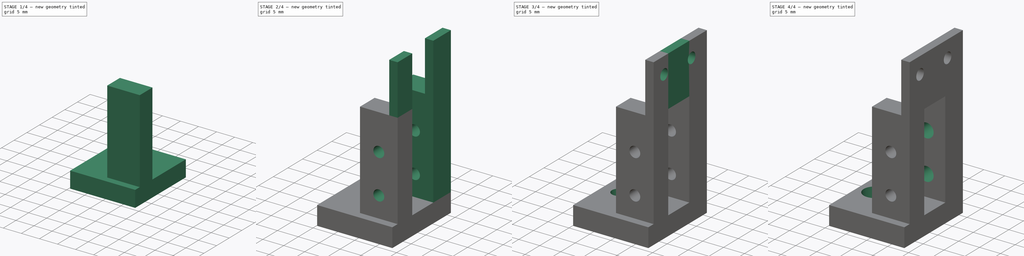
[diagram: build sequence overview — one tinted view per stage of 4, left to right]
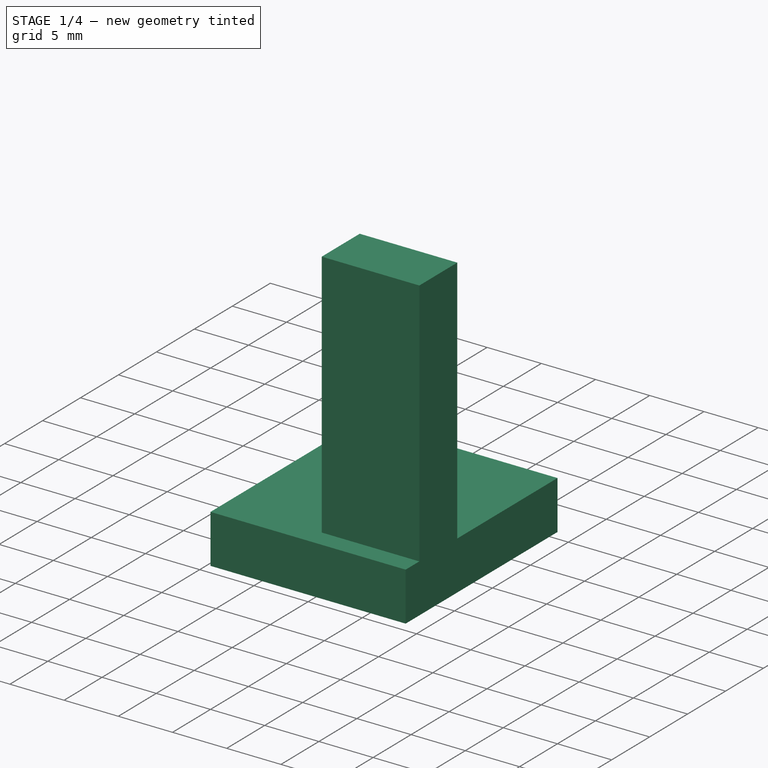
[diagram: stage 1 of 4 — iso view after this stage's code; geometry added in this stage tinted green]
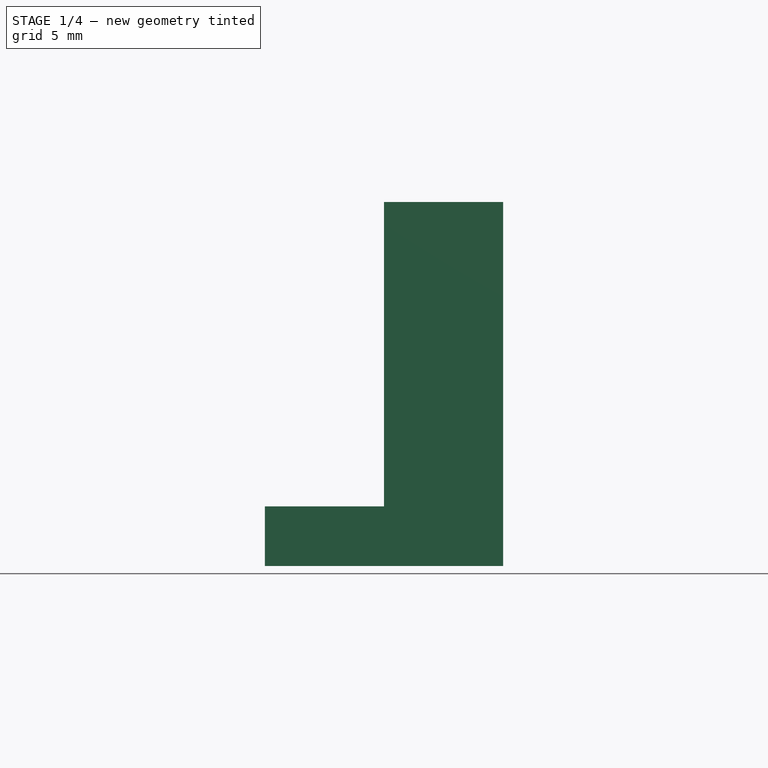
[diagram: stage 1 of 4 — front view after this stage's code; geometry added in this stage tinted green]
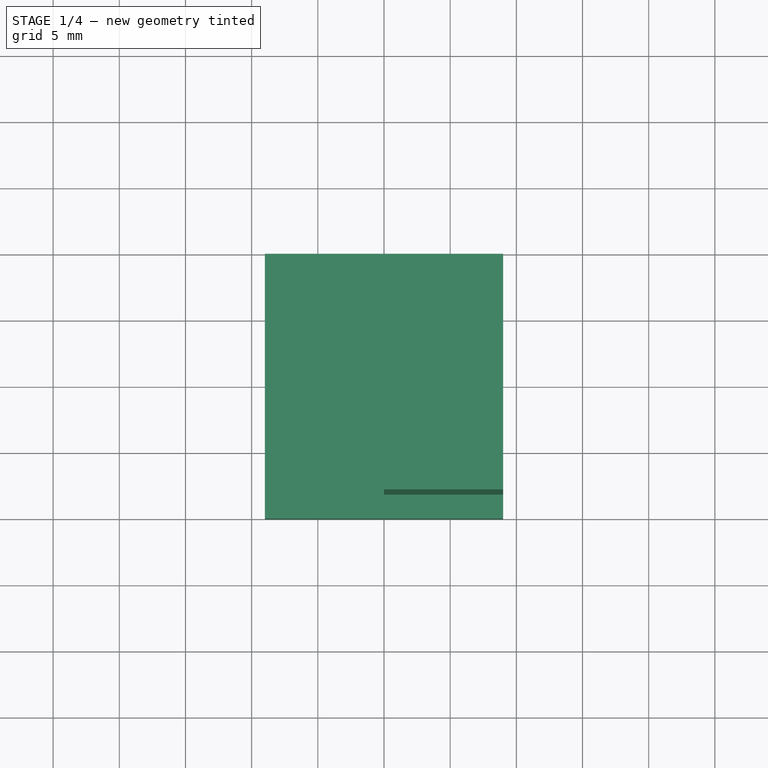
[diagram: stage 1 of 4 — top view after this stage's code; geometry added in this stage tinted green]
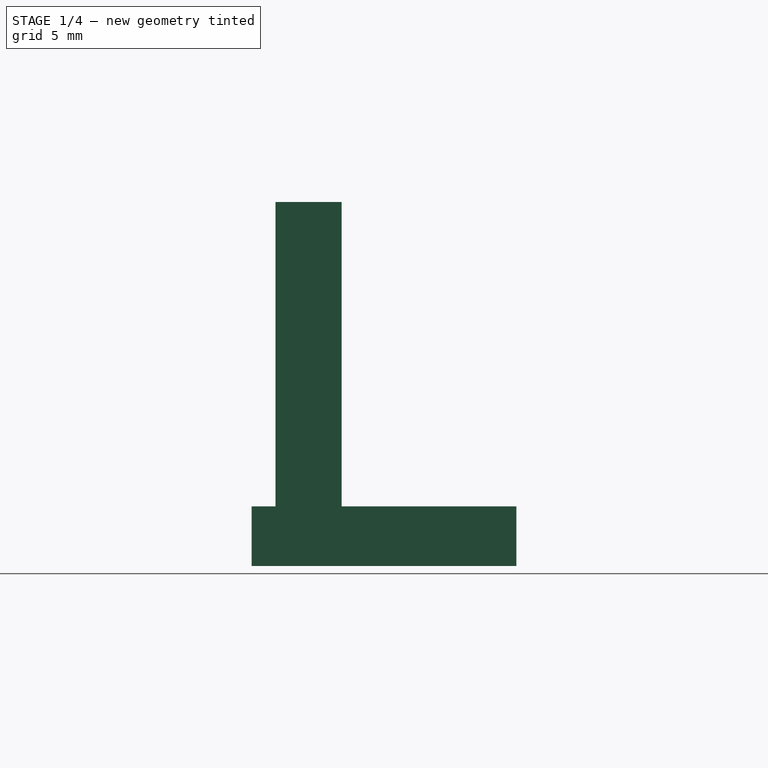
[diagram: stage 1 of 4 — right view after this stage's code; geometry added in this stage tinted green]
FCSTD DOCUMENT  (FreeCAD 0.18.4R)
Label: end_course_actuator_2
License: All rights reserved
LicenseURL: http://en.wikipedia.org/wiki/All_rights_reserved
objects: Sketcher::SketchObject×11, PartDesign::Pad×5, PartDesign::Pocket×5, PartDesign::Body×1
note: 32 computed .brp shape members not serialized (recipe doc carries the construction recipe); baked Part::Feature solids carry a one-line shape summary decoded from their .brp

FEATURE [Sketcher::SketchObject] Sketch
  MapMode = 5
  Support = -> [XY_Plane]
  sketch-geometry (4):
    g0: LineSegment StartX=-9 StartY=10 StartZ=0 EndX=9 EndY=10 EndZ=0
    g1: LineSegment StartX=9 StartY=10 StartZ=0 EndX=9 EndY=-10 EndZ=0
    g2: LineSegment StartX=9 StartY=-10 StartZ=0 EndX=-9 EndY=-10 EndZ=0
    g3: LineSegment StartX=-9 StartY=-10 StartZ=0 EndX=-9 EndY=10 EndZ=0
  constraints (10):
    c: Coincident(g0,g1)
    c: Coincident(g1,g2)
    c: Coincident(g2,g3)
    c: Coincident(g3,g0)
    c: Horizontal(g2)
    c: Vertical(g1)
    c: Symmetric(g0,g2,g-1)
    c: Symmetric(g0,g0,g-2)
    c: DistanceY(g3,g3) = 20
    c: DistanceX(g-2,g0) = -9
FEATURE [PartDesign::Pad] Pad
  Length = 4.5
  Length2 = 100
  Profile = -> Sketch
  Type = 0
FEATURE [Sketcher::SketchObject] Sketch001
  ExternalGeometry = -> [Pad]
  MapMode = 5
  Placement = pos=(0,0,4.5) rot=(0,0,1;0rad)
  Support = -> [Pad]
  sketch-geometry (4):
    g0: LineSegment StartX=0 StartY=-3.2 StartZ=0 EndX=9 EndY=-3.2 EndZ=0
    g1: LineSegment StartX=9 StartY=-3.2 StartZ=0 EndX=9 EndY=-8.2 EndZ=0
    g2: LineSegment StartX=9 StartY=-8.2 StartZ=0 EndX=0 EndY=-8.2 EndZ=0
    g3: LineSegment StartX=0 StartY=-8.2 StartZ=0 EndX=0 EndY=-3.2 EndZ=0
  constraints (12):
    c: Coincident(g0,g1)
    c: Coincident(g1,g2)
    c: Coincident(g2,g3)
    c: Coincident(g3,g0)
    c: Horizontal(g0)
    c: Horizontal(g2)
    c: Vertical(g1)
    c: Vertical(g3)
    c: PointOnObject(g0,g-2)
    c: PointOnObject(g0,g-3)
    c: Distance(g0,g-5) = 6.8
    c: Distance(g1,g0) = 5
FEATURE [PartDesign::Pad] Pad001
  BaseFeature = -> Pad
  Length = 23
  Length2 = 100
  Profile = -> Sketch001
  Type = 0
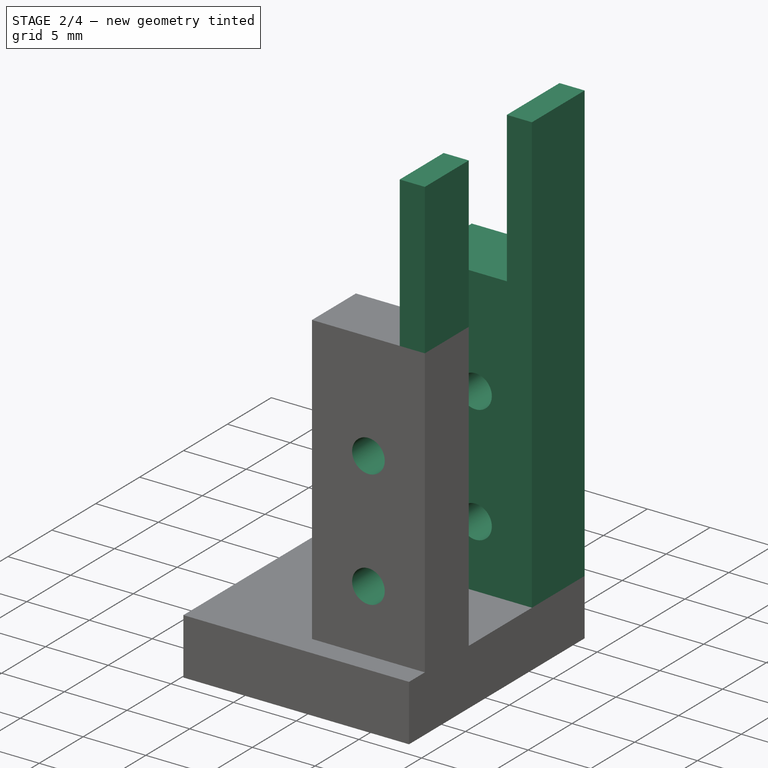
[diagram: stage 2 of 4 — iso view after this stage's code; geometry added in this stage tinted green]
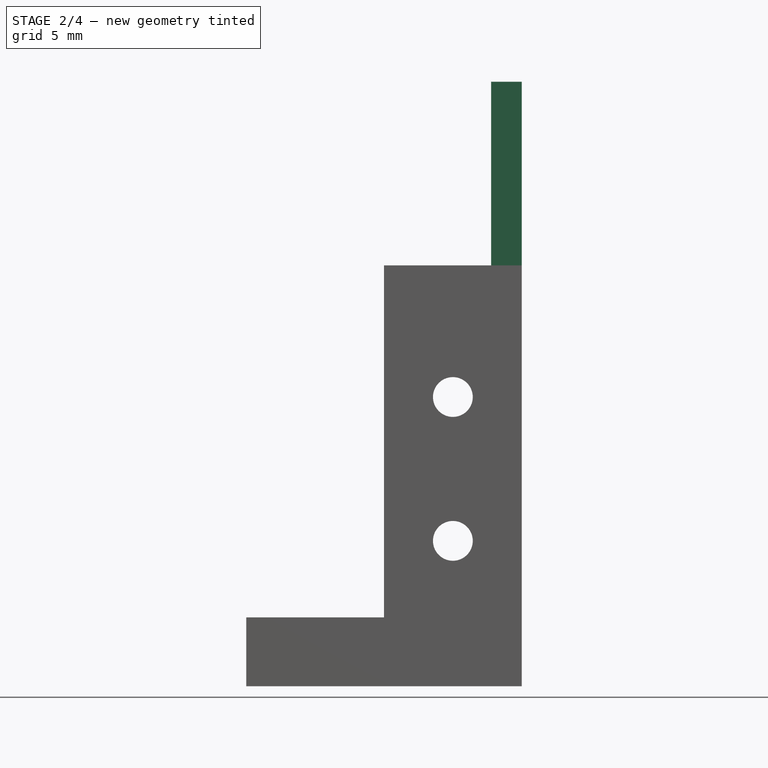
[diagram: stage 2 of 4 — front view after this stage's code; geometry added in this stage tinted green]
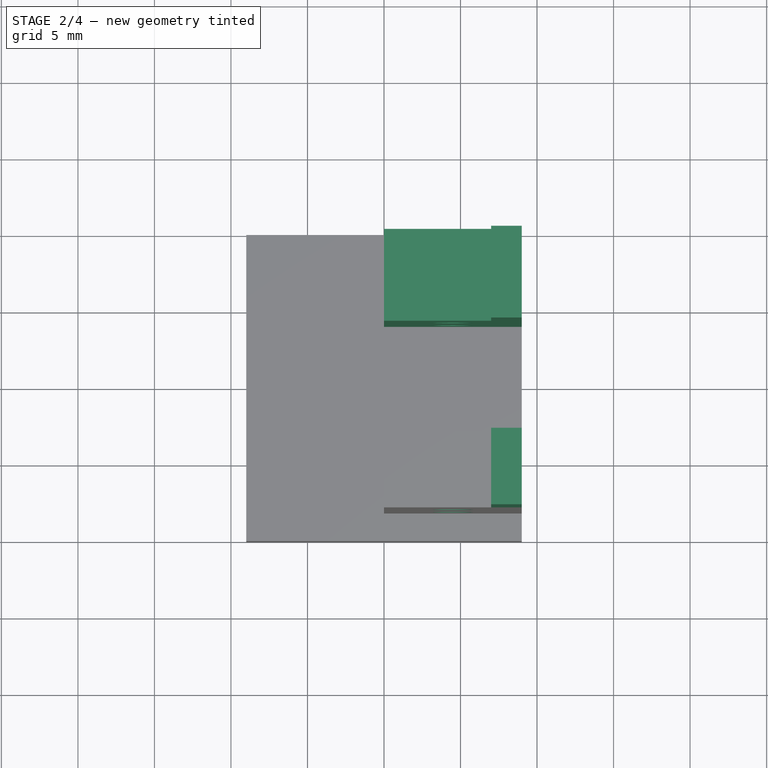
[diagram: stage 2 of 4 — top view after this stage's code; geometry added in this stage tinted green]
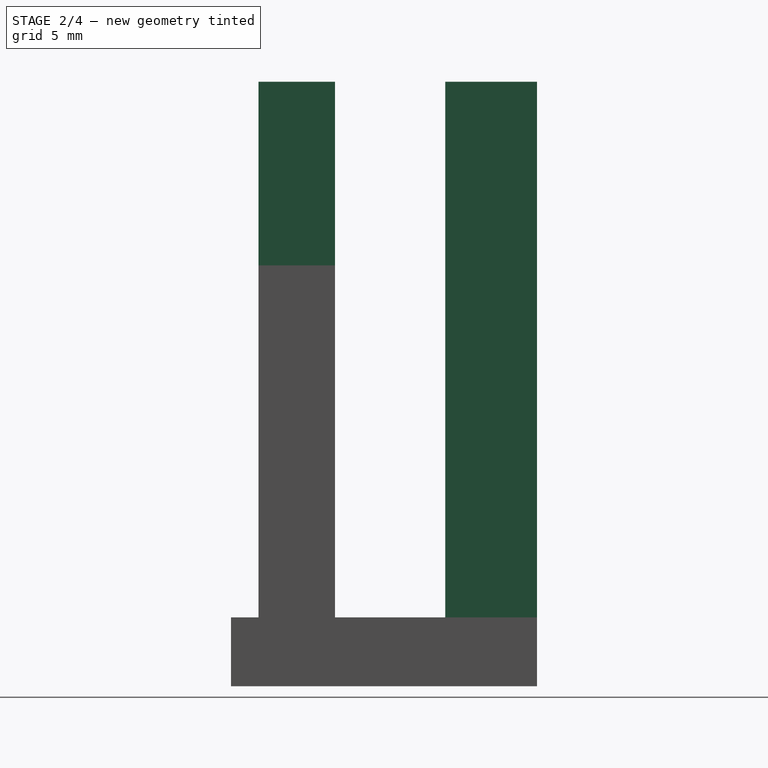
[diagram: stage 2 of 4 — right view after this stage's code; geometry added in this stage tinted green]
FEATURE [Sketcher::SketchObject] Sketch002
  ExternalGeometry = -> [Pad001]
  MapMode = 5
  Placement = pos=(0,0,4.5) rot=(0,0,1;0rad)
  Support = -> [Pad001]
  sketch-geometry (4):
    g0: LineSegment StartX=0 StartY=10 StartZ=0 EndX=9 EndY=10 EndZ=0
    g1: LineSegment StartX=9 StartY=10 StartZ=0 EndX=9 EndY=4 EndZ=0
    g2: LineSegment StartX=9 StartY=4 StartZ=0 EndX=0 EndY=4 EndZ=0
    g3: LineSegment StartX=0 StartY=4 StartZ=0 EndX=0 EndY=10 EndZ=0
  constraints (11):
    c: Coincident(g0,g1)
    c: Coincident(g1,g2)
    c: Coincident(g2,g3)
    c: Coincident(g3,g0)
    c: Horizontal(g0)
    c: Horizontal(g2)
    c: Vertical(g1)
    c: Vertical(g3)
    c: PointOnObject(g2,g-2)
    c: Distance(g1,g-4) = 6
    c: Coincident(g-4,g0)
FEATURE [PartDesign::Pad] Pad002
  BaseFeature = -> Pad001
  Length = 23
  Length2 = 100
  Profile = -> Sketch002
  Type = 0
FEATURE [Sketcher::SketchObject] Sketch004
  ExternalGeometry = -> [Pad002]
  MapMode = 5
  Placement = pos=(0,0,27.5) rot=(0,0,1;0rad)
  Support = -> [Pad002]
  sketch-geometry (8):
    g0: LineSegment StartX=7 StartY=10 StartZ=0 EndX=9 EndY=10 EndZ=0
    g1: LineSegment StartX=9 StartY=10 StartZ=0 EndX=9 EndY=4 EndZ=0
    g2: LineSegment StartX=9 StartY=4 StartZ=0 EndX=7 EndY=4 EndZ=0
    g3: LineSegment StartX=7 StartY=4 StartZ=0 EndX=7 EndY=10 EndZ=0
    g4: LineSegment StartX=7 StartY=-3.2 StartZ=0 EndX=9 EndY=-3.2 EndZ=0
    g5: LineSegment StartX=9 StartY=-3.2 StartZ=0 EndX=9 EndY=-8.2 EndZ=0
    g6: LineSegment StartX=9 StartY=-8.2 StartZ=0 EndX=7 EndY=-8.2 EndZ=0
    g7: LineSegment StartX=7 StartY=-8.2 StartZ=0 EndX=7 EndY=-3.2 EndZ=0
  constraints (20):
    c: Coincident(g0,g1)
    c: Coincident(g1,g2)
    c: Coincident(g2,g3)
    c: Coincident(g3,g0)
    c: Horizontal(g0)
    c: Horizontal(g2)
    c: Vertical(g3)
    c: Coincident(g4,g5)
    c: Coincident(g5,g6)
    c: Coincident(g6,g7)
    c: Coincident(g7,g4)
    c: Horizontal(g4)
    c: Horizontal(g6)
    c: Vertical(g7)
    c: Coincident(g4,g-6)
    c: Coincident(g0,g-4)
    c: Coincident(g5,g-6)
    c: Coincident(g1,g-3)
    c: DistanceX(g0,g0) = 2
    c: DistanceX(g4,g4) = 2
FEATURE [PartDesign::Pad] Pad003
  BaseFeature = -> Pad002
  Length = 12
  Length2 = 100
  Profile = -> Sketch004
  Type = 0
FEATURE [Sketcher::SketchObject] Sketch005
  ExternalGeometry = -> [Pad003]
  MapMode = 5
  Placement = pos=(0,-8.2,0) rot=(1,0,0;1.5708rad)
  Support = -> [Pad003]
  sketch-geometry (2):
    g0: Circle CenterX=4.5 CenterY=18.9 CenterZ=0 NormalX=0 NormalY=0 NormalZ=1 AngleXU=0 Radius=1.3
    g1: Circle CenterX=4.5 CenterY=9.5 CenterZ=0 NormalX=0 NormalY=0 NormalZ=1 AngleXU=0 Radius=1.3
  constraints (6):
    c: Distance(g0,g-4) = 4.5
    c: Vertical(g1,g0)
    c: Distance(g1,g-3) = 5
    c: Distance(g0,g-3) = 14.4
    c: Radius(g0) = 1.3
    c: Radius(g1) = 1.3
FEATURE [PartDesign::Pocket] Pocket
  BaseFeature = -> Pad003
  Length = 25
  Length2 = 100
  Profile = -> Sketch005
  Type = 0
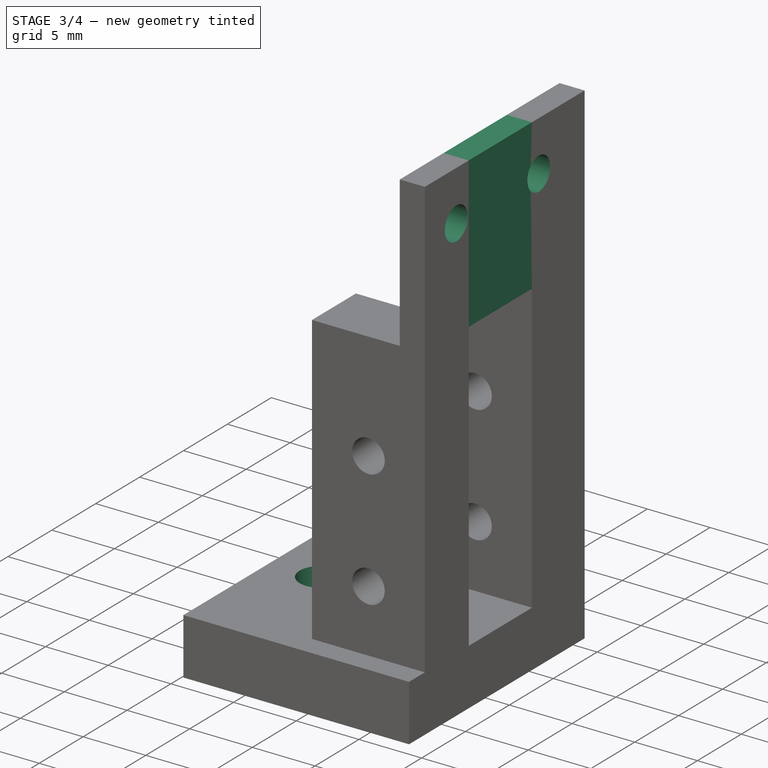
[diagram: stage 3 of 4 — iso view after this stage's code; geometry added in this stage tinted green]
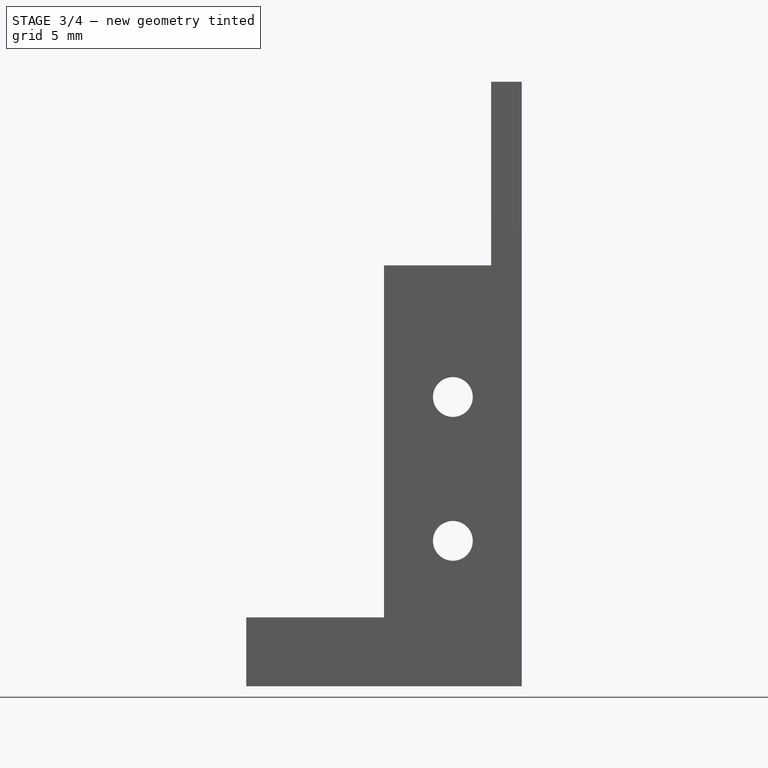
[diagram: stage 3 of 4 — front view after this stage's code; geometry added in this stage tinted green]
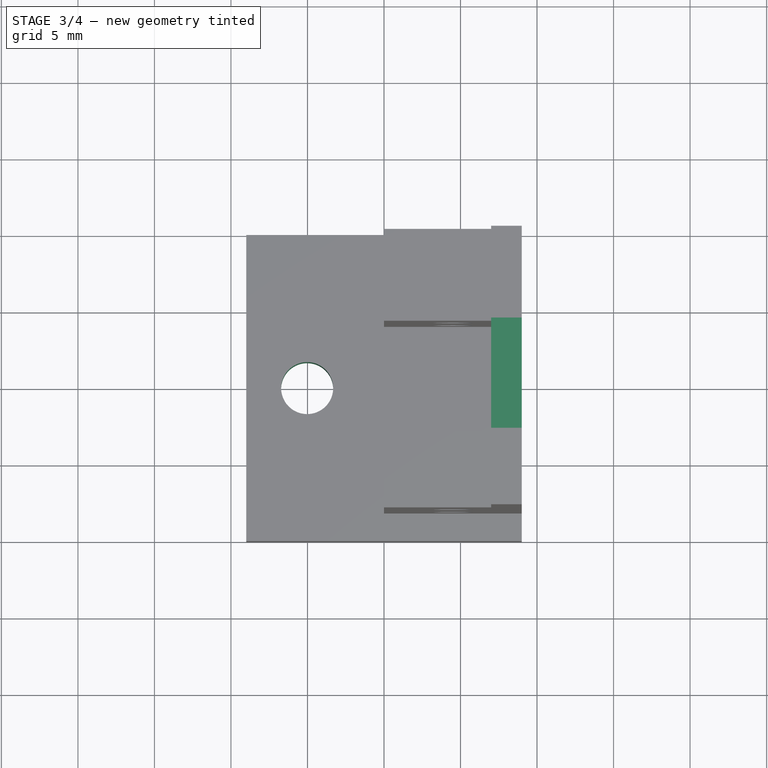
[diagram: stage 3 of 4 — top view after this stage's code; geometry added in this stage tinted green]
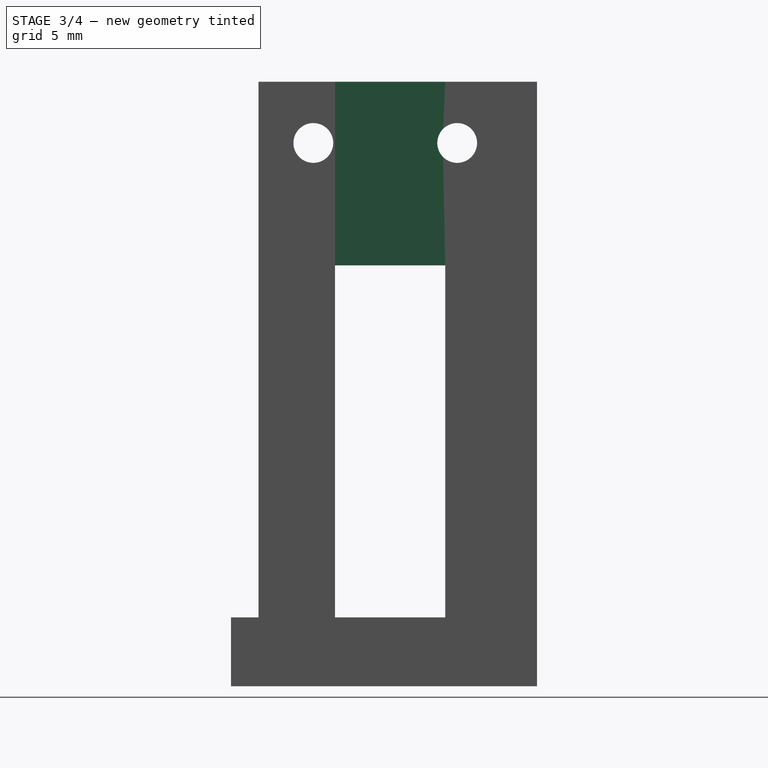
[diagram: stage 3 of 4 — right view after this stage's code; geometry added in this stage tinted green]
FEATURE [Sketcher::SketchObject] Sketch007
  MapMode = 5
  Placement = pos=(0,4,0) rot=(1,0,0;1.5708rad)
  sketch-geometry (4):
    g0: LineSegment StartX=7 StartY=39.5 StartZ=0 EndX=9 EndY=39.5 EndZ=0
    g1: LineSegment StartX=9 StartY=39.5 StartZ=0 EndX=9 EndY=27.5 EndZ=0
    g2: LineSegment StartX=9 StartY=27.5 StartZ=0 EndX=7 EndY=27.5 EndZ=0
    g3: LineSegment StartX=7 StartY=27.5 StartZ=0 EndX=7 EndY=39.5 EndZ=0
  constraints (8):
    c: Coincident(g0,g1)
    c: Coincident(g1,g2)
    c: Coincident(g2,g3)
    c: Coincident(g3,g0)
    c: Horizontal(g0)
    c: Horizontal(g2)
    c: Vertical(g1)
    c: Vertical(g3)
FEATURE [PartDesign::Pad] Pad004
  BaseFeature = -> Pocket
  Length = 7.2
  Length2 = 100
  Profile = -> Sketch007
  Type = 0
FEATURE [Sketcher::SketchObject] Sketch008
  ExternalGeometry = -> [Pad004]
  MapMode = 5
  Placement = pos=(7,0,0) rot=(0.57735,-0.57735,-0.57735;2.0944rad)
  Support = -> [Pad004]
  sketch-geometry (2):
    g0: Circle CenterX=-4.78235 CenterY=35.5 CenterZ=0 NormalX=0 NormalY=0 NormalZ=1 AngleXU=0 Radius=1.3
    g1: Circle CenterX=4.61765 CenterY=35.5 CenterZ=0 NormalX=0 NormalY=0 NormalZ=1 AngleXU=0 Radius=1.3
  constraints (5):
    c: Radius(g1) = 1.3
    c: Radius(g0) = 1.3
    c: Horizontal(g1,g0)
    c: Distance(g0,g1) = 9.4
    c: Distance(g0,g-5) = 8
FEATURE [PartDesign::Pocket] Pocket001
  BaseFeature = -> Pad004
  Length = 5
  Length2 = 100
  Profile = -> Sketch008
  Type = 0
FEATURE [Sketcher::SketchObject] Sketch009
  MapMode = 5
  Placement = pos=(0,0,4.5) rot=(0,0,1;0rad)
  Support = -> [Pocket001]
  sketch-geometry (1):
    g0: Circle CenterX=-5.02174 CenterY=0 CenterZ=0 NormalX=0 NormalY=0 NormalZ=1 AngleXU=0 Radius=1.7
  constraints (2):
    c: Radius(g0) = 1.7
    c: PointOnObject(g0,g-1)
FEATURE [Sketcher::SketchObject] CopySketch009
  Placement = pos=(0,0,4.5) rot=(0,0,1;0rad)
  sketch-geometry (1):
    g0: Circle CenterX=-5.02174 CenterY=0 CenterZ=0 NormalX=0 NormalY=0 NormalZ=1 AngleXU=0 Radius=1.7
  constraints (2):
    c: Radius(g0) = 1.7
    c: PointOnObject(g0,g-1)
FEATURE [PartDesign::Pocket] Pocket002
  BaseFeature = -> Pocket001
  Length = 5
  Length2 = 100
  Profile = -> CopySketch009
  Type = 0
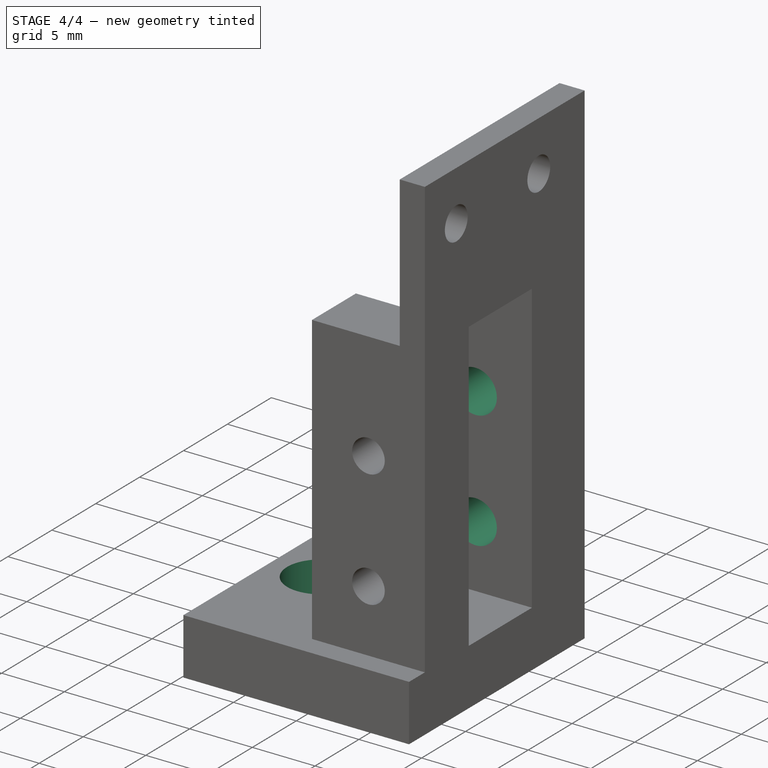
[diagram: stage 4 of 4 — iso view after this stage's code; geometry added in this stage tinted green]
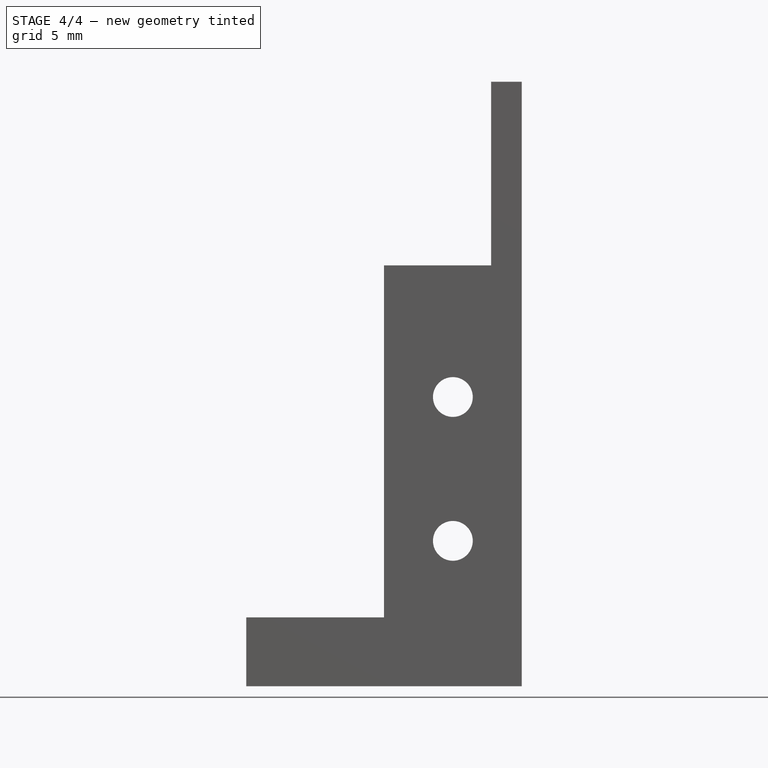
[diagram: stage 4 of 4 — front view after this stage's code; geometry added in this stage tinted green]
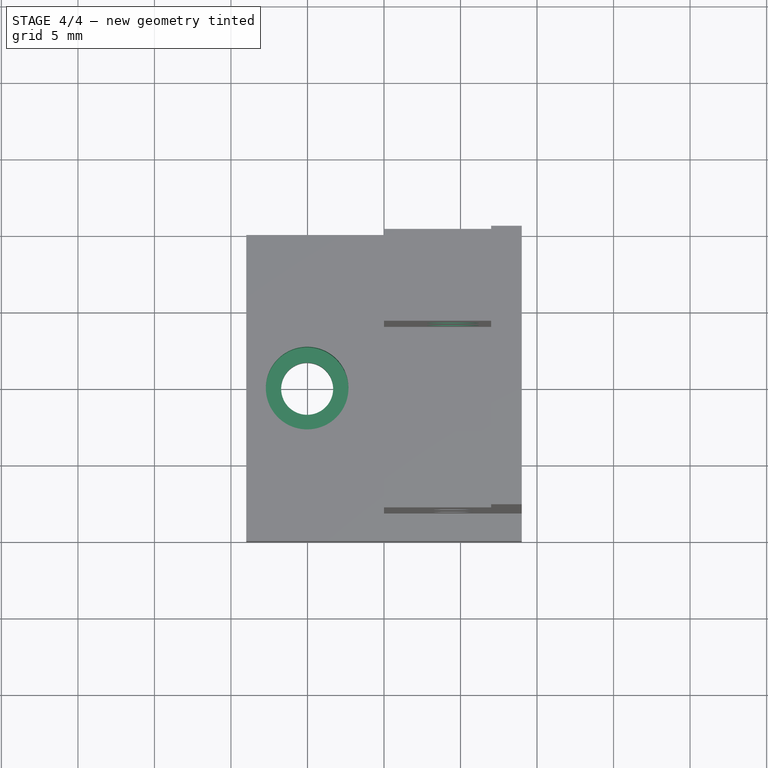
[diagram: stage 4 of 4 — top view after this stage's code; geometry added in this stage tinted green]
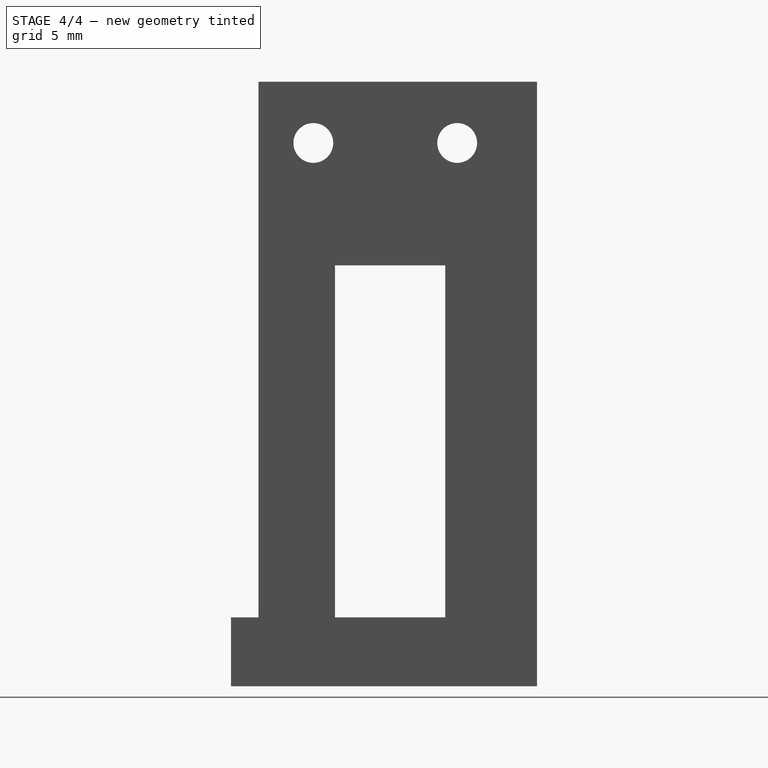
[diagram: stage 4 of 4 — right view after this stage's code; geometry added in this stage tinted green]
FEATURE [Sketcher::SketchObject] Sketch010
  ExternalGeometry = -> [Pocket002]
  MapMode = 5
  Placement = pos=(0,0,4.5) rot=(0,0,1;0rad)
  Support = -> [Pocket002]
  sketch-geometry (1):
    g0: Circle CenterX=-5.02174 CenterY=0 CenterZ=0 NormalX=0 NormalY=0 NormalZ=1 AngleXU=0 Radius=2.7
  constraints (2):
    c: Coincident(g0,g-3)
    c: Radius(g0) = 2.7
FEATURE [PartDesign::Pocket] Pocket003
  BaseFeature = -> Pocket002
  Length = 2.7
  Length2 = 100
  Profile = -> Sketch010
  Type = 0
FEATURE [Sketcher::SketchObject] Sketch011
  ExternalGeometry = -> [Pocket003]
  MapMode = 5
  Placement = pos=(0,10,0) rot=(0,0.707107,0.707107;3.14159rad)
  Support = -> [Pocket003]
  sketch-geometry (2):
    g0: Circle CenterX=-4.5 CenterY=18.9 CenterZ=0 NormalX=0 NormalY=0 NormalZ=1 AngleXU=0 Radius=1.7
    g1: Circle CenterX=-4.5 CenterY=9.5 CenterZ=0 NormalX=0 NormalY=0 NormalZ=1 AngleXU=0 Radius=1.7
  constraints (4):
    c: Coincident(g1,g-4)
    c: Coincident(g0,g-3)
    c: Radius(g0) = 1.7
    c: Radius(g1) = 1.7
FEATURE [PartDesign::Pocket] Pocket004
  BaseFeature = -> Pocket003
  Length = 7
  Length2 = 100
  Profile = -> Sketch011
  Type = 0
FEATURE [PartDesign::Body] Body
  Group = -> [Sketch,Pad,Sketch001,Pad001,Sketch002,Pad002,Sketch004,Pad003,Sketch005,Pocket,Sketch007,Pad004,Sketch008,Pocket001,Pocket002,Sketch010,Pocket003,Sketch011,Pocket004]
  Origin = -> Origin
  Tip = -> Pocket004
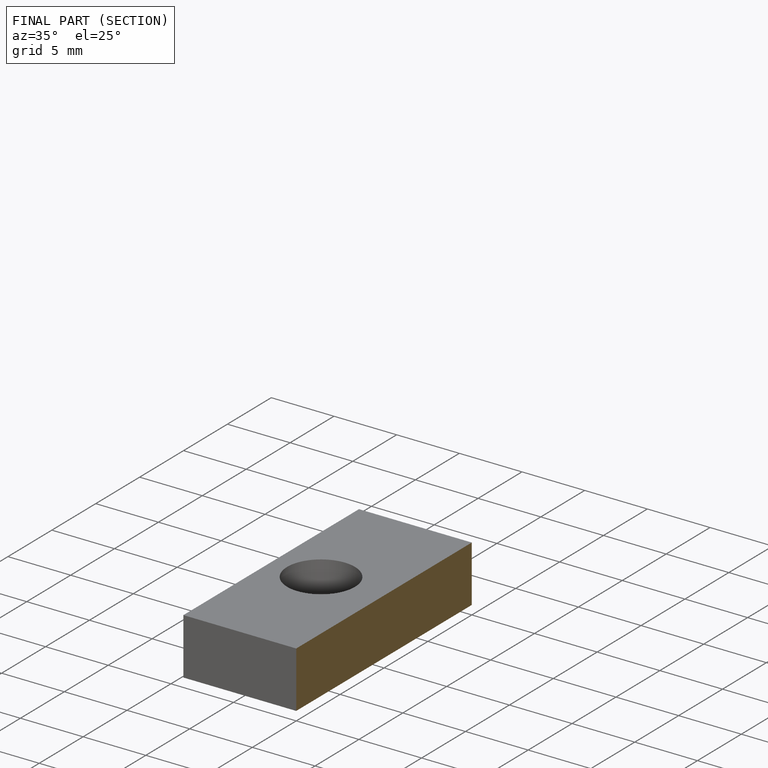
[diagram: finished part — half-section view (interior)]
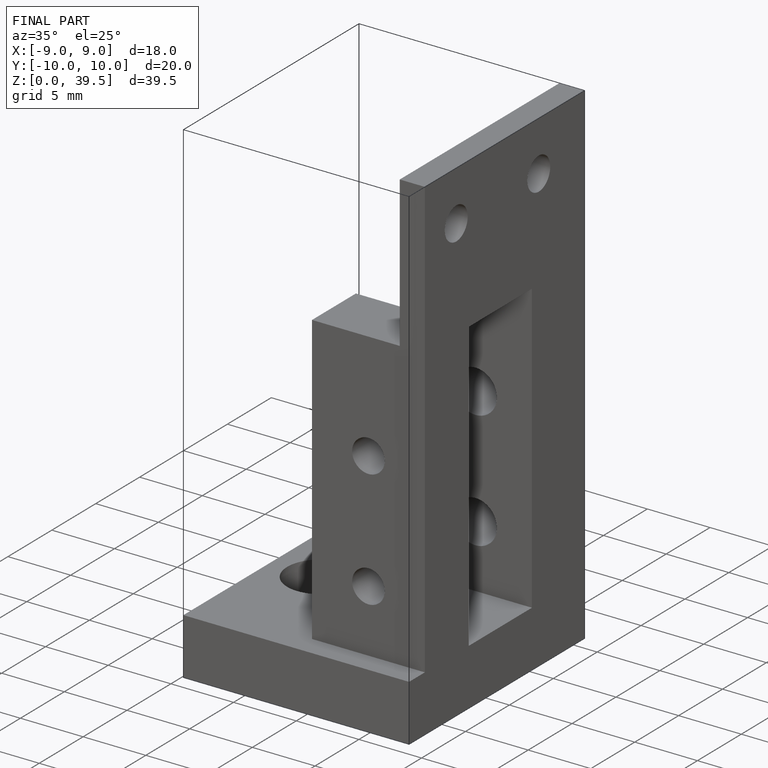
[diagram: finished part — iso view with bounding-box wireframe]
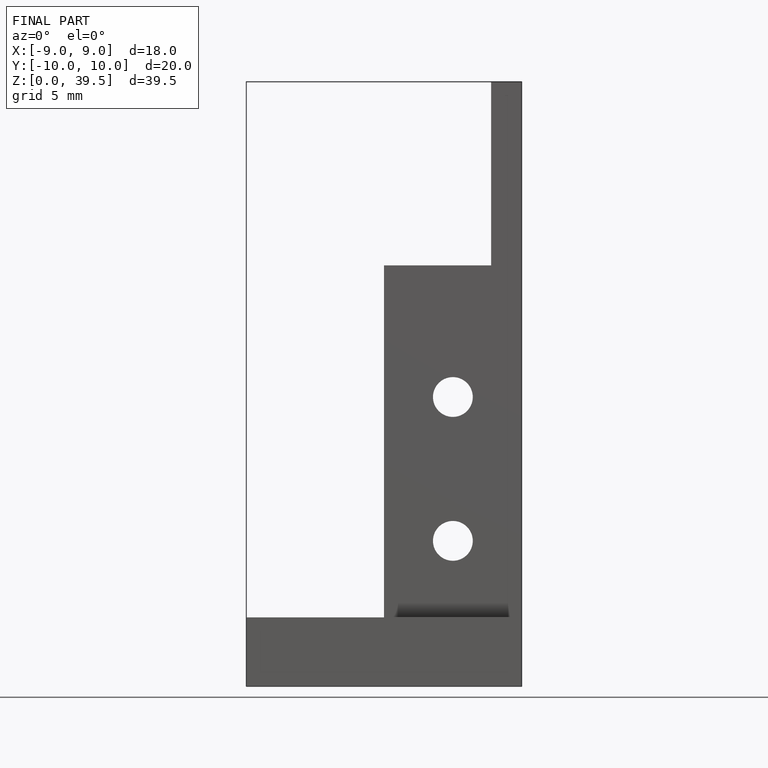
[diagram: finished part — front view with bounding-box wireframe]
